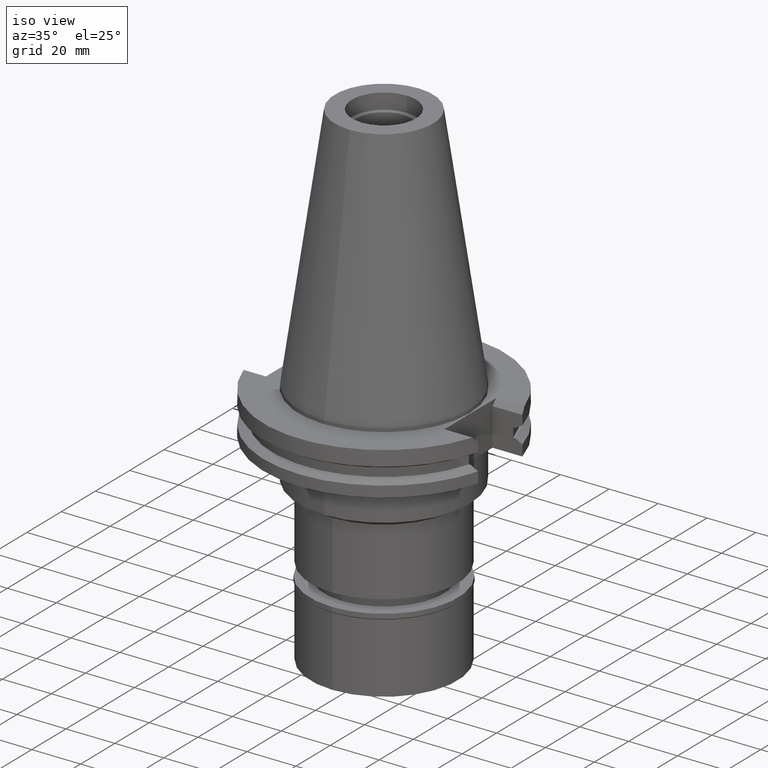
[diagram: clean part render]
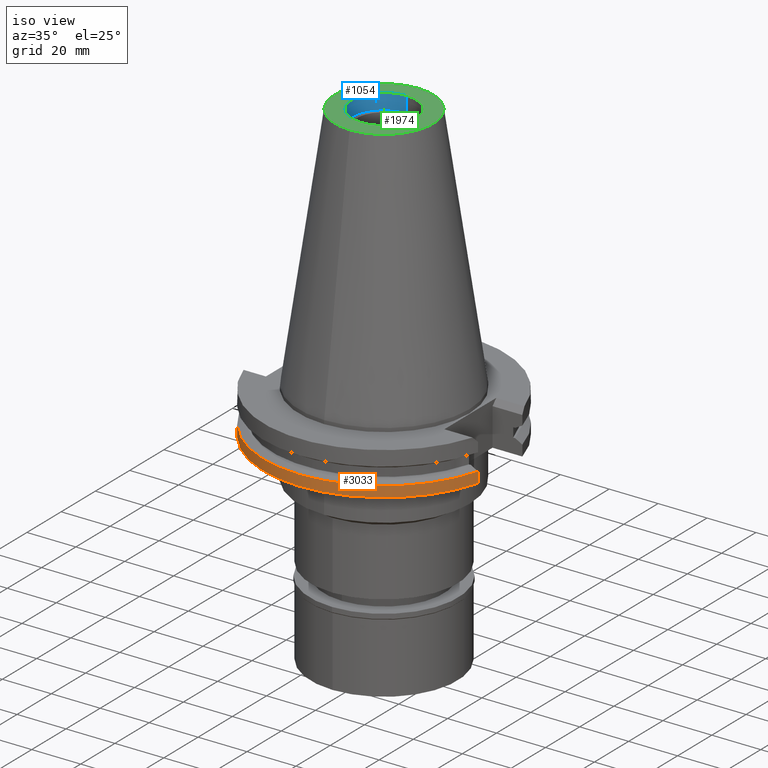
[diagram: same view with three faces highlighted in distinct colors, each labeled with its STEP entity id]
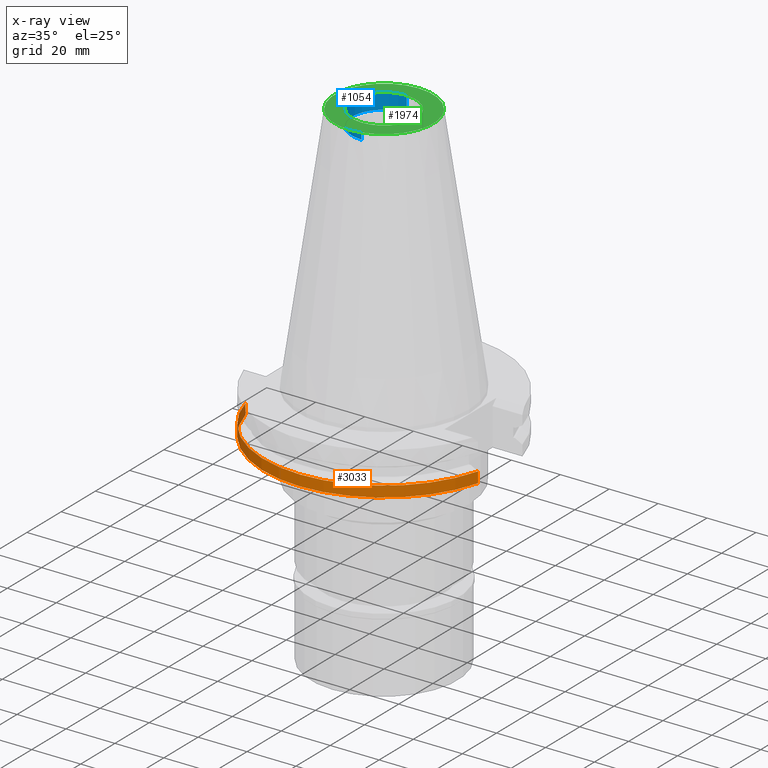
[diagram: x-ray of the same camera — body ghosted, the three highlighted faces saturated]
A machine part, iso view with three faces highlighted in distinct colors.
The next image is the same camera in x-ray (body ghosted, the three faces saturated) — at least one of them is partly hidden behind the body in this view.
Their STEP definitions:

[orange] entity #3033 — the highlighted cylindrical surface (partial cylindrical patch) has radius 49.2125 mm, axis along (0, 0, -1).
#30 = LINE ( 'NONE', #3011, #1228 ) ;
#53 = EDGE_CURVE ( 'NONE', #2947, #1498, #2930, .T. ) ;
#94 = CARTESIAN_POINT ( 'NONE',  ( 47.47671146204000081, -12.95500000000000007, -14.65366676908000088 ) ) ;
#127 = ORIENTED_EDGE ( 'NONE', *, *, #2307, .T. ) ;
#246 = AXIS2_PLACEMENT_3D ( 'NONE', #2865, #894, #371 ) ;
#327 = AXIS2_PLACEMENT_3D ( 'NONE', #362, #1819, #1383 ) ;
#362 = CARTESIAN_POINT ( 'NONE',  ( 0.0000000000000000000, 2.586270342779000040E-14, 111.1850000000000023 ) ) ;
#371 = DIRECTION ( 'NONE',  ( 0.0000000000000000000, -1.000000000000000000, 0.0000000000000000000 ) ) ;
#518 = CARTESIAN_POINT ( 'NONE',  ( 0.0000000000000000000, 1.055026073064999954E-14, -14.65366676908000088 ) ) ;
#586 = ORIENTED_EDGE ( 'NONE', *, *, #767, .F. ) ;
#636 = CARTESIAN_POINT ( 'NONE',  ( -47.47671146204000081, -12.95500000000000007, -19.05000000000000071 ) ) ;
#696 = AXIS2_PLACEMENT_3D ( 'NONE', #518, #2527, #2993 ) ;
#767 = EDGE_CURVE ( 'NONE', #2947, #2641, #30, .T. ) ;
#809 = DIRECTION ( 'NONE',  ( -1.341459893287999999E-13, -4.727433961284999965E-14, 1.000000000000000000 ) ) ;
#894 = DIRECTION ( 'NONE',  ( 0.0000000000000000000, 0.0000000000000000000, 1.000000000000000000 ) ) ;
#944 = EDGE_LOOP ( 'NONE', ( #127, #586, #1656, #1673 ) ) ;
#1163 = DIRECTION ( 'NONE',  ( -1.244486888953999897E-13, 4.808244798230000260E-14, -1.000000000000000000 ) ) ;
#1228 = VECTOR ( 'NONE', #809, 1000.000000000000000 ) ;
#1332 = FACE_OUTER_BOUND ( 'NONE', #944, .T. ) ;
#1371 = CARTESIAN_POINT ( 'NONE',  ( 47.47671146204000081, -12.95500000000000007, -14.65366676908000088 ) ) ;
#1383 = DIRECTION ( 'NONE',  ( 0.0000000000000000000, -1.000000000000000000, 0.0000000000000000000 ) ) ;
#1438 = VERTEX_POINT ( 'NONE', #94 ) ;
#1498 = VERTEX_POINT ( 'NONE', #2165 ) ;
#1656 = ORIENTED_EDGE ( 'NONE', *, *, #53, .T. ) ;
#1673 = ORIENTED_EDGE ( 'NONE', *, *, #2446, .F. ) ;
#1819 = DIRECTION ( 'NONE',  ( 0.0000000000000000000, 0.0000000000000000000, -1.000000000000000000 ) ) ;
#1875 = VECTOR ( 'NONE', #1163, 1000.000000000000000 ) ;
#1947 = CARTESIAN_POINT ( 'NONE',  ( -47.47671146204000081, -12.95500000000000007, -14.65366676908000088 ) ) ;
#2129 = LINE ( 'NONE', #1371, #1875 ) ;
#2165 = CARTESIAN_POINT ( 'NONE',  ( 47.47671146204000081, -12.95500000000000007, -19.05000000000000071 ) ) ;
#2307 = EDGE_CURVE ( 'NONE', #1438, #2641, #2350, .T. ) ;
#2350 = CIRCLE ( 'NONE', #696, 49.21250000000001279 ) ;
#2446 = EDGE_CURVE ( 'NONE', #1438, #1498, #2129, .T. ) ;
#2527 = DIRECTION ( 'NONE',  ( 0.0000000000000000000, 0.0000000000000000000, -1.000000000000000000 ) ) ;
#2641 = VERTEX_POINT ( 'NONE', #1947 ) ;
#2865 = CARTESIAN_POINT ( 'NONE',  ( 0.0000000000000000000, 2.586270342779000040E-14, -19.05000000000000071 ) ) ;
#2930 = CIRCLE ( 'NONE', #246, 49.21249999999999858 ) ;
#2947 = VERTEX_POINT ( 'NONE', #636 ) ;
#2993 = DIRECTION ( 'NONE',  ( 0.9647287063660957562, -0.2632461264922989486, 0.0000000000000000000 ) ) ;
#3011 = CARTESIAN_POINT ( 'NONE',  ( -47.47671146204000081, -12.95500000000000007, -19.05000000000000071 ) ) ;
#3033 = ADVANCED_FACE ( 'NONE', ( #1332 ), #3066, .T. ) ;
#3066 = CYLINDRICAL_SURFACE ( 'NONE', #327, 49.21249999999999858 ) ;

[blue] entity #1054 — the highlighted cylindrical surface (partial cylindrical patch) has radius 13.115 mm, axis along (0, 0, -1).
#21 = CARTESIAN_POINT ( 'NONE',  ( 0.0000000000000000000, -13.11500000000000021, 95.25000000000000000 ) ) ;
#63 = DIRECTION ( 'NONE',  ( 0.0000000000000000000, 0.0000000000000000000, 1.000000000000000000 ) ) ;
#72 = EDGE_CURVE ( 'NONE', #1242, #1096, #660, .T. ) ;
#154 = CARTESIAN_POINT ( 'NONE',  ( 0.0000000000000000000, 2.586270342779000040E-14, 95.25000000000000000 ) ) ;
#197 = DIRECTION ( 'NONE',  ( 0.0000000000000000000, 0.0000000000000000000, -1.000000000000000000 ) ) ;
#235 = VERTEX_POINT ( 'NONE', #2800 ) ;
#502 = CARTESIAN_POINT ( 'NONE',  ( 0.0000000000000000000, 13.11500000000000021, 95.25000000000000000 ) ) ;
#504 = VECTOR ( 'NONE', #1092, 1000.000000000000000 ) ;
#581 = EDGE_CURVE ( 'NONE', #1232, #1242, #3140, .T. ) ;
#616 = EDGE_CURVE ( 'NONE', #1232, #235, #1474, .T. ) ;
#660 = LINE ( 'NONE', #3146, #504 ) ;
#1020 = DIRECTION ( 'NONE',  ( 0.0000000000000000000, 1.000000000000000000, 0.0000000000000000000 ) ) ;
#1054 = ADVANCED_FACE ( 'NONE', ( #2201 ), #1669, .F. ) ;
#1092 = DIRECTION ( 'NONE',  ( 0.0000000000000000000, 0.0000000000000000000, 1.000000000000000000 ) ) ;
#1096 = VERTEX_POINT ( 'NONE', #2440 ) ;
#1116 = AXIS2_PLACEMENT_3D ( 'NONE', #154, #1343, #2891 ) ;
#1226 = VECTOR ( 'NONE', #2489, 1000.000000000000000 ) ;
#1232 = VERTEX_POINT ( 'NONE', #21 ) ;
#1242 = VERTEX_POINT ( 'NONE', #502 ) ;
#1249 = EDGE_CURVE ( 'NONE', #1096, #235, #2161, .T. ) ;
#1343 = DIRECTION ( 'NONE',  ( 0.0000000000000000000, 0.0000000000000000000, -1.000000000000000000 ) ) ;
#1429 = AXIS2_PLACEMENT_3D ( 'NONE', #1960, #197, #2430 ) ;
#1474 = LINE ( 'NONE', #2699, #1226 ) ;
#1520 = ORIENTED_EDGE ( 'NONE', *, *, #616, .F. ) ;
#1669 = CYLINDRICAL_SURFACE ( 'NONE', #1429, 13.11500000000000021 ) ;
#1686 = AXIS2_PLACEMENT_3D ( 'NONE', #2233, #63, #1020 ) ;
#1960 = CARTESIAN_POINT ( 'NONE',  ( 0.0000000000000000000, 2.586270342779000040E-14, 111.1850000000000023 ) ) ;
#2161 = CIRCLE ( 'NONE', #1686, 13.11500000000000021 ) ;
#2201 = FACE_OUTER_BOUND ( 'NONE', #2675, .T. ) ;
#2233 = CARTESIAN_POINT ( 'NONE',  ( 0.0000000000000000000, 2.586270342779000040E-14, 101.5999999999999943 ) ) ;
#2430 = DIRECTION ( 'NONE',  ( 0.0000000000000000000, -1.000000000000000000, 0.0000000000000000000 ) ) ;
#2440 = CARTESIAN_POINT ( 'NONE',  ( 0.0000000000000000000, 13.11500000000000021, 101.5999999999999943 ) ) ;
#2489 = DIRECTION ( 'NONE',  ( 0.0000000000000000000, 0.0000000000000000000, 1.000000000000000000 ) ) ;
#2674 = ORIENTED_EDGE ( 'NONE', *, *, #72, .T. ) ;
#2675 = EDGE_LOOP ( 'NONE', ( #3136, #1520, #3039, #2674 ) ) ;
#2699 = CARTESIAN_POINT ( 'NONE',  ( 0.0000000000000000000, -13.11500000000000021, 95.25000000000000000 ) ) ;
#2800 = CARTESIAN_POINT ( 'NONE',  ( 0.0000000000000000000, -13.11500000000000021, 101.5999999999999943 ) ) ;
#2891 = DIRECTION ( 'NONE',  ( 0.0000000000000000000, -1.000000000000000000, 0.0000000000000000000 ) ) ;
#3039 = ORIENTED_EDGE ( 'NONE', *, *, #581, .T. ) ;
#3136 = ORIENTED_EDGE ( 'NONE', *, *, #1249, .T. ) ;
#3140 = CIRCLE ( 'NONE', #1116, 13.11500000000000021 ) ;
#3146 = CARTESIAN_POINT ( 'NONE',  ( 0.0000000000000000000, 13.11500000000000021, 95.25000000000000000 ) ) ;

[green] entity #1974 — the highlighted planar face has unit normal (0, 0, -1).
#7 = ORIENTED_EDGE ( 'NONE', *, *, #1249, .F. ) ;
#10 = DIRECTION ( 'NONE',  ( 0.0000000000000000000, 0.0000000000000000000, -1.000000000000000000 ) ) ;
#19 = ORIENTED_EDGE ( 'NONE', *, *, #2583, .F. ) ;
#63 = DIRECTION ( 'NONE',  ( 0.0000000000000000000, 0.0000000000000000000, 1.000000000000000000 ) ) ;
#148 = PLANE ( 'NONE',  #1235 ) ;
#151 = VERTEX_POINT ( 'NONE', #2927 ) ;
#235 = VERTEX_POINT ( 'NONE', #2800 ) ;
#403 = ORIENTED_EDGE ( 'NONE', *, *, #2627, .F. ) ;
#413 = DIRECTION ( 'NONE',  ( 0.0000000000000000000, 0.0000000000000000000, -1.000000000000000000 ) ) ;
#611 = FACE_BOUND ( 'NONE', #1078, .T. ) ;
#728 = DIRECTION ( 'NONE',  ( 0.0000000000000000000, -1.000000000000000000, 0.0000000000000000000 ) ) ;
#802 = AXIS2_PLACEMENT_3D ( 'NONE', #1651, #3155, #728 ) ;
#845 = CIRCLE ( 'NONE', #3169, 20.10832422388000040 ) ;
#1020 = DIRECTION ( 'NONE',  ( 0.0000000000000000000, 1.000000000000000000, 0.0000000000000000000 ) ) ;
#1078 = EDGE_LOOP ( 'NONE', ( #7, #1895 ) ) ;
#1095 = FACE_OUTER_BOUND ( 'NONE', #2112, .T. ) ;
#1096 = VERTEX_POINT ( 'NONE', #2440 ) ;
#1235 = AXIS2_PLACEMENT_3D ( 'NONE', #1905, #413, #2079 ) ;
#1249 = EDGE_CURVE ( 'NONE', #1096, #235, #2161, .T. ) ;
#1651 = CARTESIAN_POINT ( 'NONE',  ( 0.0000000000000000000, 2.586270342779000040E-14, 101.5999999999999943 ) ) ;
#1686 = AXIS2_PLACEMENT_3D ( 'NONE', #2233, #63, #1020 ) ;
#1868 = CIRCLE ( 'NONE', #2500, 20.10832422388000040 ) ;
#1895 = ORIENTED_EDGE ( 'NONE', *, *, #3116, .F. ) ;
#1905 = CARTESIAN_POINT ( 'NONE',  ( 0.0000000000000000000, 2.468887947081000065E-14, 101.5999999999999943 ) ) ;
#1923 = CIRCLE ( 'NONE', #802, 13.11500000000000021 ) ;
#1974 = ADVANCED_FACE ( 'NONE', ( #1095, #611 ), #148, .F. ) ;
#2075 = CARTESIAN_POINT ( 'NONE',  ( 0.0000000000000000000, 1.846767373113999857E-14, 101.5999999999999943 ) ) ;
#2079 = DIRECTION ( 'NONE',  ( 0.0000000000000000000, -1.000000000000000000, 0.0000000000000000000 ) ) ;
#2112 = EDGE_LOOP ( 'NONE', ( #19, #403 ) ) ;
#2161 = CIRCLE ( 'NONE', #1686, 13.11500000000000021 ) ;
#2181 = DIRECTION ( 'NONE',  ( 0.0000000000000000000, -1.000000000000000000, 0.0000000000000000000 ) ) ;
#2202 = DIRECTION ( 'NONE',  ( 0.0000000000000000000, 0.0000000000000000000, -1.000000000000000000 ) ) ;
#2233 = CARTESIAN_POINT ( 'NONE',  ( 0.0000000000000000000, 2.586270342779000040E-14, 101.5999999999999943 ) ) ;
#2431 = CARTESIAN_POINT ( 'NONE',  ( 0.0000000000000000000, 1.846767373113999857E-14, 101.5999999999999943 ) ) ;
#2440 = CARTESIAN_POINT ( 'NONE',  ( 0.0000000000000000000, 13.11500000000000021, 101.5999999999999943 ) ) ;
#2490 = VERTEX_POINT ( 'NONE', #2588 ) ;
#2500 = AXIS2_PLACEMENT_3D ( 'NONE', #2431, #10, #2181 ) ;
#2583 = EDGE_CURVE ( 'NONE', #151, #2490, #845, .T. ) ;
#2588 = CARTESIAN_POINT ( 'NONE',  ( 0.0000000000000000000, -20.10832422388000040, 101.5999999999999943 ) ) ;
#2627 = EDGE_CURVE ( 'NONE', #2490, #151, #1868, .T. ) ;
#2800 = CARTESIAN_POINT ( 'NONE',  ( 0.0000000000000000000, -13.11500000000000021, 101.5999999999999943 ) ) ;
#2897 = DIRECTION ( 'NONE',  ( 0.0000000000000000000, 1.000000000000000000, 0.0000000000000000000 ) ) ;
#2927 = CARTESIAN_POINT ( 'NONE',  ( 0.0000000000000000000, 20.10832422388000040, 101.5999999999999943 ) ) ;
#3116 = EDGE_CURVE ( 'NONE', #235, #1096, #1923, .T. ) ;
#3155 = DIRECTION ( 'NONE',  ( 0.0000000000000000000, 0.0000000000000000000, 1.000000000000000000 ) ) ;
#3169 = AXIS2_PLACEMENT_3D ( 'NONE', #2075, #2202, #2897 ) ;